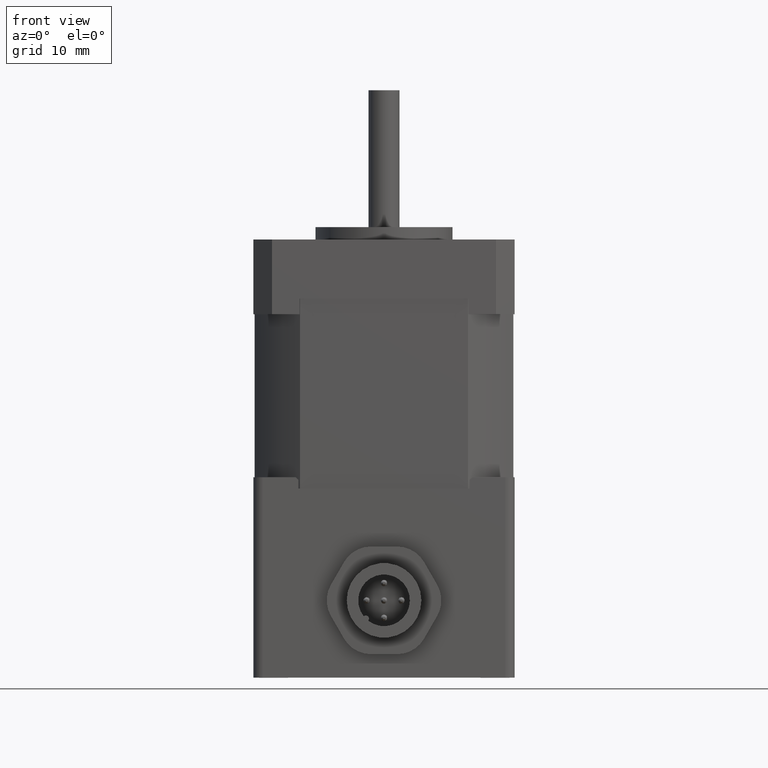
[diagram: clean part render]
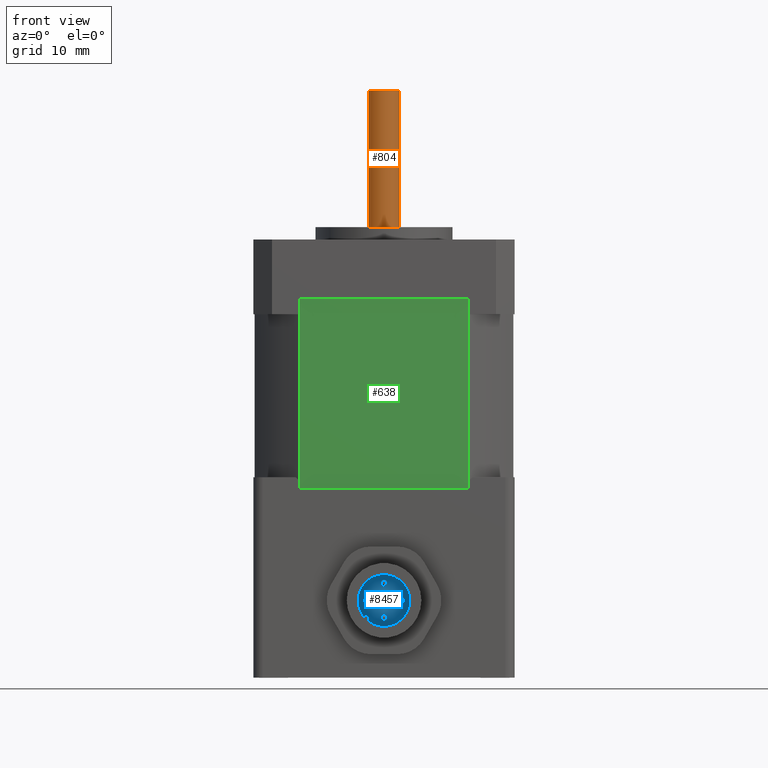
[diagram: same view with three faces highlighted in distinct colors, each labeled with its STEP entity id]
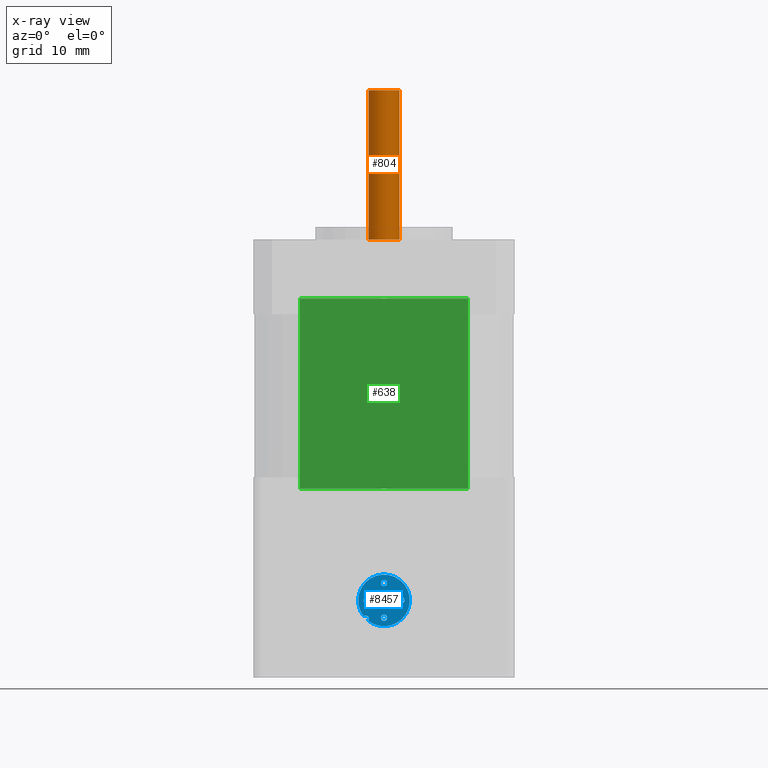
[diagram: x-ray of the same camera — body ghosted, the three highlighted faces saturated]
A machine part, front view with three faces highlighted in distinct colors.
The next image is the same camera in x-ray (body ghosted, the three faces saturated) — at least one of them is partly hidden behind the body in this view.
Their STEP definitions:

[orange] entity #804 — the highlighted cylindrical surface (bore or boss wall) has radius 2.5 mm, axis along (0, -0, 1).
#777=CARTESIAN_POINT('',(0.0,0.0,0.0));
#778=DIRECTION('',(0.0,0.0,-1.0));
#779=DIRECTION('',(1.0,0.0,0.0));
#780=AXIS2_PLACEMENT_3D('',#777,#778,#779);
#781=CYLINDRICAL_SURFACE('',#780,2.500000000000000);
#782=CARTESIAN_POINT('',(-2.500000000000000,3.061516E-016,-24.000000000000007));
#783=VERTEX_POINT('',#782);
#784=CARTESIAN_POINT('',(0.0,0.0,-24.000000000000007));
#785=DIRECTION('',(0.0,0.0,1.0));
#786=DIRECTION('',(1.0,0.0,0.0));
#787=AXIS2_PLACEMENT_3D('',#784,#785,#786);
#788=CIRCLE('',#787,2.500000000000000);
#789=EDGE_CURVE('',#783,#783,#788,.T.);
#790=ORIENTED_EDGE('',*,*,#789,.T.);
#791=EDGE_LOOP('',(#790));
#792=FACE_OUTER_BOUND('',#791,.T.);
#793=CARTESIAN_POINT('',(-2.500000000000000,3.061516E-016,0.0));
#794=VERTEX_POINT('',#793);
#795=CARTESIAN_POINT('',(0.0,0.0,0.0));
#796=DIRECTION('',(0.0,0.0,1.0));
#797=DIRECTION('',(1.0,0.0,0.0));
#798=AXIS2_PLACEMENT_3D('',#795,#796,#797);
#799=CIRCLE('',#798,2.500000000000000);
#800=EDGE_CURVE('',#794,#794,#799,.T.);
#801=ORIENTED_EDGE('',*,*,#800,.F.);
#802=EDGE_LOOP('',(#801));
#803=FACE_BOUND('',#802,.T.);
#804=ADVANCED_FACE('',(#792,#803),#781,.T.);

[blue] entity #8457 — the highlighted planar face has unit normal (0, 1, 0).
#8345=CARTESIAN_POINT('',(-2.560283455361279,-3.266106034439682,4.000000000000004));
#8346=VERTEX_POINT('',#8345);
#8353=CARTESIAN_POINT('',(-3.266106034439680,-2.560283455361282,4.000000000000004));
#8354=VERTEX_POINT('',#8353);
#8355=CARTESIAN_POINT('',(-2.934493141924172,-2.934493141924174,4.000000000000004));
#8356=DIRECTION('',(0.0,0.0,-1.000000000000000));
#8357=DIRECTION('',(0.748419373125784,-0.663225785031017,0.0));
#8358=AXIS2_PLACEMENT_3D('',#8355,#8356,#8357);
#8359=CIRCLE('',#8358,0.500000000000000);
#8360=EDGE_CURVE('',#8354,#8346,#8359,.T.);
#8387=CARTESIAN_POINT('',(0.0,0.0,4.000000000000004));
#8388=DIRECTION('',(0.0,0.0,-1.0));
#8389=DIRECTION('',(-1.0,0.0,0.0));
#8390=AXIS2_PLACEMENT_3D('',#8387,#8388,#8389);
#8391=PLANE('',#8390);
#8392=ORIENTED_EDGE('',*,*,#8360,.T.);
#8393=CARTESIAN_POINT('',(0.0,0.0,4.000000000000004));
#8394=DIRECTION('',(0.0,0.0,1.0));
#8395=DIRECTION('',(-1.0,0.0,0.0));
#8396=AXIS2_PLACEMENT_3D('',#8393,#8394,#8395);
#8397=CIRCLE('',#8396,4.150000000000000);
#8398=EDGE_CURVE('',#8346,#8354,#8397,.T.);
#8399=ORIENTED_EDGE('',*,*,#8398,.T.);
#8400=EDGE_LOOP('',(#8392,#8399));
#8401=FACE_OUTER_BOUND('',#8400,.T.);
#8402=CARTESIAN_POINT('',(0.500000000000000,-2.800000000000000,4.000000000000004));
#8403=VERTEX_POINT('',#8402);
#8404=CARTESIAN_POINT('',(0.0,-2.800000000000000,4.000000000000004));
#8405=DIRECTION('',(0.0,0.0,-1.0));
#8406=DIRECTION('',(-1.0,0.0,0.0));
#8407=AXIS2_PLACEMENT_3D('',#8404,#8405,#8406);
#8408=CIRCLE('',#8407,0.500000000000000);
#8409=EDGE_CURVE('',#8403,#8403,#8408,.T.);
#8410=ORIENTED_EDGE('',*,*,#8409,.T.);
#8411=EDGE_LOOP('',(#8410));
#8412=FACE_BOUND('',#8411,.T.);
#8413=CARTESIAN_POINT('',(3.300000000000000,6.123234E-017,4.000000000000004));
#8414=VERTEX_POINT('',#8413);
#8415=CARTESIAN_POINT('',(2.800000000000000,0.0,4.000000000000004));
#8416=DIRECTION('',(0.0,0.0,-1.0));
#8417=DIRECTION('',(-1.0,0.0,0.0));
#8418=AXIS2_PLACEMENT_3D('',#8415,#8416,#8417);
#8419=CIRCLE('',#8418,0.500000000000000);
#8420=EDGE_CURVE('',#8414,#8414,#8419,.T.);
#8421=ORIENTED_EDGE('',*,*,#8420,.T.);
#8422=EDGE_LOOP('',(#8421));
#8423=FACE_BOUND('',#8422,.T.);
#8424=CARTESIAN_POINT('',(0.500000000000000,6.123234E-017,4.000000000000004));
#8425=VERTEX_POINT('',#8424);
#8426=CARTESIAN_POINT('',(0.0,0.0,4.000000000000004));
#8427=DIRECTION('',(0.0,0.0,-1.0));
#8428=DIRECTION('',(-1.0,0.0,0.0));
#8429=AXIS2_PLACEMENT_3D('',#8426,#8427,#8428);
#8430=CIRCLE('',#8429,0.500000000000000);
#8431=EDGE_CURVE('',#8425,#8425,#8430,.T.);
#8432=ORIENTED_EDGE('',*,*,#8431,.T.);
#8433=EDGE_LOOP('',(#8432));
#8434=FACE_BOUND('',#8433,.T.);
#8435=CARTESIAN_POINT('',(0.500000000000000,2.800000000000000,4.000000000000004));
#8436=VERTEX_POINT('',#8435);
#8437=CARTESIAN_POINT('',(0.0,2.800000000000000,4.000000000000004));
#8438=DIRECTION('',(0.0,0.0,-1.0));
#8439=DIRECTION('',(-1.0,0.0,0.0));
#8440=AXIS2_PLACEMENT_3D('',#8437,#8438,#8439);
#8441=CIRCLE('',#8440,0.500000000000000);
#8442=EDGE_CURVE('',#8436,#8436,#8441,.T.);
#8443=ORIENTED_EDGE('',*,*,#8442,.T.);
#8444=EDGE_LOOP('',(#8443));
#8445=FACE_BOUND('',#8444,.T.);
#8446=CARTESIAN_POINT('',(-2.300000000000000,6.123234E-017,4.000000000000004));
#8447=VERTEX_POINT('',#8446);
#8448=CARTESIAN_POINT('',(-2.800000000000000,0.0,4.000000000000004));
#8449=DIRECTION('',(0.0,0.0,-1.0));
#8450=DIRECTION('',(-1.0,0.0,0.0));
#8451=AXIS2_PLACEMENT_3D('',#8448,#8449,#8450);
#8452=CIRCLE('',#8451,0.500000000000000);
#8453=EDGE_CURVE('',#8447,#8447,#8452,.T.);
#8454=ORIENTED_EDGE('',*,*,#8453,.T.);
#8455=EDGE_LOOP('',(#8454));
#8456=FACE_BOUND('',#8455,.T.);
#8457=ADVANCED_FACE('',(#8401,#8412,#8423,#8434,#8445,#8456),#8391,.F.);

[green] entity #638 — the highlighted planar face has unit normal (-0, -1, -0).
#580=CARTESIAN_POINT('',(13.505554412907305,-20.800000000000001,40.0));
#581=VERTEX_POINT('',#580);
#589=CARTESIAN_POINT('',(13.505554412907305,-20.800000000000001,9.500000000000004));
#590=VERTEX_POINT('',#589);
#591=CARTESIAN_POINT('',(13.505554412907305,-20.800000000000001,9.500000000000004));
#592=DIRECTION('',(0.0,0.0,1.0));
#593=VECTOR('',#592,30.499999999999996);
#594=LINE('',#591,#593);
#595=EDGE_CURVE('',#590,#581,#594,.T.);
#608=CARTESIAN_POINT('',(13.505554412907305,-20.800000000000001,9.500000000000004));
#609=DIRECTION('',(0.0,-1.0,0.0));
#610=DIRECTION('',(0.0,0.0,-1.0));
#611=AXIS2_PLACEMENT_3D('',#608,#609,#610);
#612=PLANE('',#611);
#613=CARTESIAN_POINT('',(-13.505554412907305,-20.800000000000001,40.0));
#614=VERTEX_POINT('',#613);
#615=CARTESIAN_POINT('',(13.505554412907305,-20.800000000000001,40.0));
#616=DIRECTION('',(-1.0,0.0,0.0));
#617=VECTOR('',#616,27.011108825814610);
#618=LINE('',#615,#617);
#619=EDGE_CURVE('',#581,#614,#618,.T.);
#620=ORIENTED_EDGE('',*,*,#619,.T.);
#621=CARTESIAN_POINT('',(-13.505554412907305,-20.800000000000001,9.500000000000004));
#622=VERTEX_POINT('',#621);
#623=CARTESIAN_POINT('',(-13.505554412907305,-20.800000000000001,9.500000000000004));
#624=DIRECTION('',(0.0,0.0,1.0));
#625=VECTOR('',#624,30.499999999999996);
#626=LINE('',#623,#625);
#627=EDGE_CURVE('',#622,#614,#626,.T.);
#628=ORIENTED_EDGE('',*,*,#627,.F.);
#629=CARTESIAN_POINT('',(13.505554412907305,-20.800000000000001,9.500000000000004));
#630=DIRECTION('',(-1.0,0.0,0.0));
#631=VECTOR('',#630,27.011108825814610);
#632=LINE('',#629,#631);
#633=EDGE_CURVE('',#590,#622,#632,.T.);
#634=ORIENTED_EDGE('',*,*,#633,.F.);
#635=ORIENTED_EDGE('',*,*,#595,.T.);
#636=EDGE_LOOP('',(#620,#628,#634,#635));
#637=FACE_OUTER_BOUND('',#636,.T.);
#638=ADVANCED_FACE('',(#637),#612,.T.);